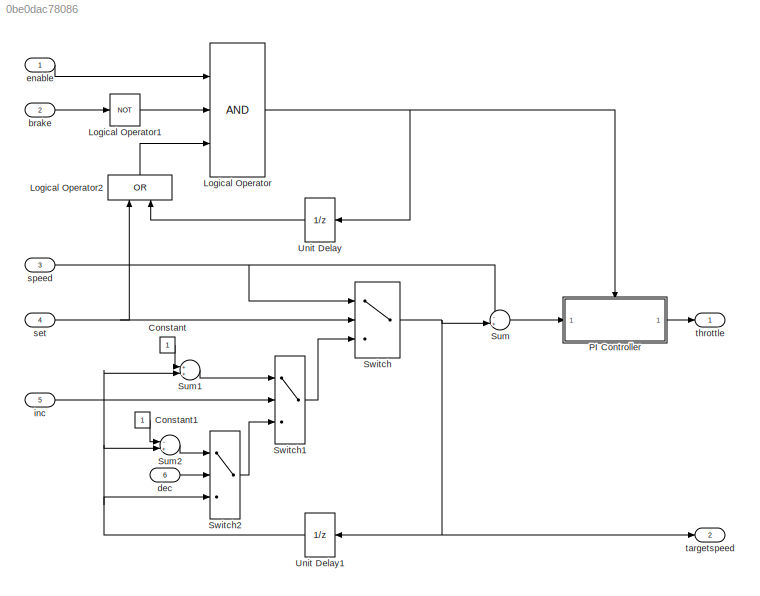
MODEL slx_0be0dac78086
KIND model
CONFIG AbsTol = auto
CONFIG EnableMultiTasking = off
CONFIG FixedStep = auto
CONFIG MaxStep = auto
CONFIG MinStep = auto
CONFIG RelTol = 1e-3
CONFIG SampleTimeConstraint = Unconstrained
CONFIG SolverName = VariableStepAuto
CONFIG StartTime = 0.0
CONFIG StopTime = 10.0
BLOCK [Constant] Constant
BLOCK [Constant] Constant1
BLOCK [Logic] Logical Operator
  AllPortsSameDT = off
  Inputs = 3
  OutDataTypeStr = boolean
  Ports = [3, 1]
BLOCK [Logic] Logical Operator1
  AllPortsSameDT = off
  Inputs = 1
  Operator = NOT
  OutDataTypeStr = boolean
  Ports = [1, 1]
BLOCK [Logic] Logical Operator2
  AllPortsSameDT = off
  NameLocation = right
  Operator = OR
  OutDataTypeStr = boolean
  Ports = [2, 1]
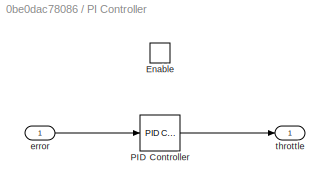
BLOCK [SubSystem] PI Controller
  Ports = [1, 1, 1]
  RequestExecContextInheritance = off
  TreatAsAtomicUnit = on
BLOCK [EnablePort] PI Controller/Enable
  Ports = []
BLOCK [Reference] PI Controller/PID Controller  REF=pid_lib/PID Controller
  Ports = [1, 1]
  SourceBlock = pid_lib/PID Controller
  SourceProductBaseCode = SL
  SourceType = PID 1dof
BLOCK [Inport] PI Controller/error
BLOCK [Outport] PI Controller/throttle
  VectorParamsAs1DForOutWhenUnconnected = off
BLOCK [Sum] Sum
  Inputs = -+|
  Ports = [2, 1]
BLOCK [Sum] Sum1
  Inputs = ++|
  Ports = [2, 1]
BLOCK [Sum] Sum2
  Inputs = -+|
  Ports = [2, 1]
BLOCK [Switch] Switch
  Criteria = u2 > Threshold
  InputSameDT = off
  SaturateOnIntegerOverflow = off
BLOCK [Switch] Switch1
  Criteria = u2 > Threshold
  InputSameDT = off
  SaturateOnIntegerOverflow = off
BLOCK [Switch] Switch2
  Criteria = u2 > Threshold
  InputSameDT = off
  SaturateOnIntegerOverflow = off
BLOCK [UnitDelay] Unit Delay
  HasFrameUpgradeWarning = on
  NameLocation = top
  SampleTime = -1
BLOCK [UnitDelay] Unit Delay1
  HasFrameUpgradeWarning = on
  NameLocation = top
  SampleTime = -1
BLOCK [Inport] brake 
  Port = 2
BLOCK [Inport] dec
  Port = 6
BLOCK [Inport] enable
BLOCK [Inport] inc
  Port = 5
BLOCK [Inport] set
  Port = 4
BLOCK [Inport] speed
  Port = 3
BLOCK [Outport] targetspeed 
  Port = 2
  VectorParamsAs1DForOutWhenUnconnected = off
BLOCK [Outport] throttle
  VectorParamsAs1DForOutWhenUnconnected = off
LINE Constant1:1 -> Sum2:1
LINE Constant:1 -> Sum1:1
LINE Logical Operator1:1 -> Logical Operator:2
LINE Logical Operator2:1 -> Logical Operator:3
NET Logical Operator:1 -> PI Controller:enable, Unit Delay:1
LINE PI Controller/PID Controller:1 -> PI Controller/throttle:1
LINE PI Controller/error:1 -> PI Controller/PID Controller:1
LINE PI Controller:1 -> throttle:1
LINE Sum1:1 -> Switch1:1
LINE Sum2:1 -> Switch2:1
LINE Sum:1 -> PI Controller:1
LINE Switch1:1 -> Switch:3
LINE Switch2:1 -> Switch1:3
NET Switch:1 -> Sum:2, Unit Delay1:1, targetspeed :1
NET Unit Delay1:1 -> Sum1:2, Sum2:2, Switch2:3
LINE Unit Delay:1 -> Logical Operator2:2
LINE brake :1 -> Logical Operator1:1
LINE dec:1 -> Switch2:2
LINE enable:1 -> Logical Operator:1
LINE inc:1 -> Switch1:2
NET set:1 -> Logical Operator2:1, Switch:2
NET speed:1 -> Sum:1, Switch:1
note: NET lines group one-source signal fan-out (src -> all destinations, sorted); 1:1 wires keep LINE
